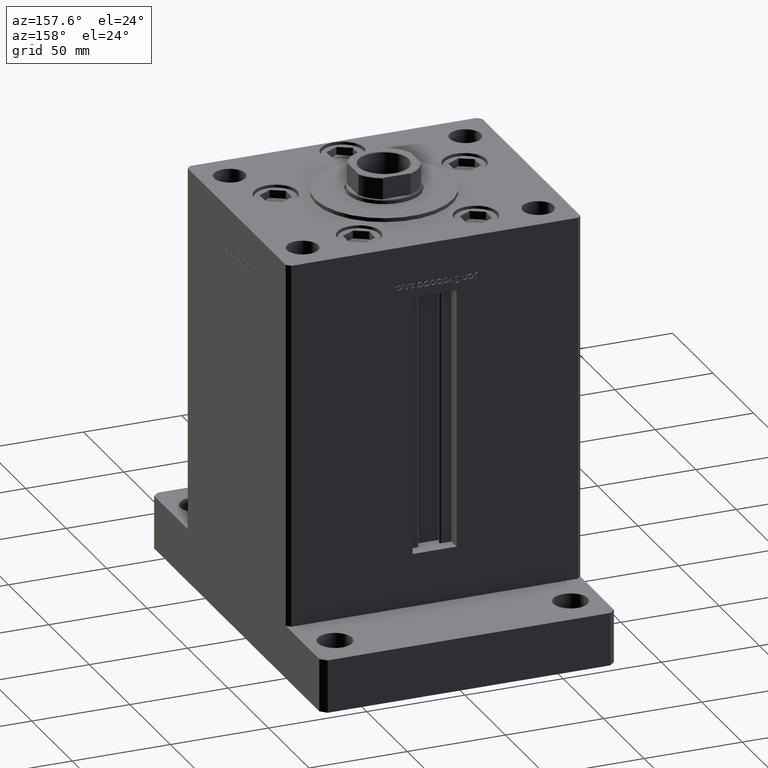
[diagram: clean part render]
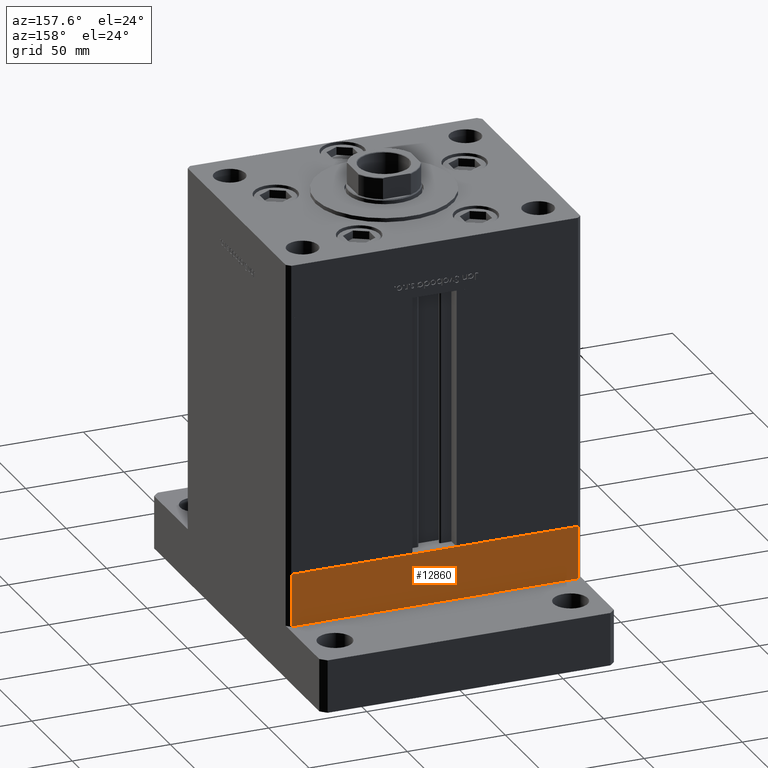
[diagram: same view with one face highlighted and labeled with its STEP entity id]
A machine part, auxiliary view. The second image highlights one B-rep face of the part: STEP entity #12860.
In plain terms, the highlighted planar face has unit normal (0, 1, 0).
Its self-contained STEP definition (entity closure, byte-faithful):
#214 = DIRECTION ( 'NONE',  ( -1.000000000000000000, -1.901066822988282689E-16, 0.000000000000000000 ) ) ;
#409 = LINE ( 'NONE', #16981, #26624 ) ;
#470 = EDGE_CURVE ( 'NONE', #33221, #23939, #11891, .T. ) ;
#8240 = AXIS2_PLACEMENT_3D ( 'NONE', #25586, #9795, #37531 ) ;
#9795 = DIRECTION ( 'NONE',  ( -1.901066822988282936E-16, 1.000000000000000000, 0.000000000000000000 ) ) ;
#11891 = LINE ( 'NONE', #49897, #29689 ) ;
#12473 = CARTESIAN_POINT ( 'NONE',  ( 72.99999999999992895, 62.50000000000001421, -27.00000000000000000 ) ) ;
#12860 = ADVANCED_FACE ( 'NONE', ( #25320 ), #13862, .T. ) ;
#13862 = PLANE ( 'NONE',  #8240 ) ;
#15377 = EDGE_CURVE ( 'NONE', #47877, #33221, #20908, .T. ) ;
#16824 = DIRECTION ( 'NONE',  ( 0.000000000000000000, 0.000000000000000000, 1.000000000000000000 ) ) ;
#16981 = CARTESIAN_POINT ( 'NONE',  ( -73.00000000000001421, 62.49999999999998579, -27.00000000000000000 ) ) ;
#19066 = ORIENTED_EDGE ( 'NONE', *, *, #53249, .T. ) ;
#20908 = LINE ( 'NONE', #29594, #41306 ) ;
#23939 = VERTEX_POINT ( 'NONE', #37129 ) ;
#25320 = FACE_OUTER_BOUND ( 'NONE', #43417, .T. ) ;
#25586 = CARTESIAN_POINT ( 'NONE',  ( 72.99999999999992895, 62.50000000000001421, -27.00000000000000000 ) ) ;
#26624 = VECTOR ( 'NONE', #32761, 1000.000000000000000 ) ;
#29594 = CARTESIAN_POINT ( 'NONE',  ( 72.99999999999992895, 62.50000000000001421, -27.00000000000000000 ) ) ;
#29689 = VECTOR ( 'NONE', #214, 1000.000000000000000 ) ;
#30420 = ORIENTED_EDGE ( 'NONE', *, *, #15377, .F. ) ;
#32761 = DIRECTION ( 'NONE',  ( 0.000000000000000000, 0.000000000000000000, 1.000000000000000000 ) ) ;
#33134 = LINE ( 'NONE', #12473, #42549 ) ;
#33221 = VERTEX_POINT ( 'NONE', #46650 ) ;
#35380 = CARTESIAN_POINT ( 'NONE',  ( 72.99999999999992895, 62.50000000000001421, -27.00000000000000000 ) ) ;
#37129 = CARTESIAN_POINT ( 'NONE',  ( -73.00000000000001421, 62.49999999999998579, 0.000000000000000000 ) ) ;
#37531 = DIRECTION ( 'NONE',  ( -1.000000000000000000, -1.901066822988282936E-16, 0.000000000000000000 ) ) ;
#41196 = EDGE_CURVE ( 'NONE', #47877, #46300, #33134, .T. ) ;
#41306 = VECTOR ( 'NONE', #16824, 1000.000000000000000 ) ;
#41852 = ORIENTED_EDGE ( 'NONE', *, *, #470, .F. ) ;
#42549 = VECTOR ( 'NONE', #43655, 1000.000000000000000 ) ;
#43417 = EDGE_LOOP ( 'NONE', ( #41852, #30420, #52338, #19066 ) ) ;
#43655 = DIRECTION ( 'NONE',  ( -1.000000000000000000, -1.901066822988282689E-16, 0.000000000000000000 ) ) ;
#46300 = VERTEX_POINT ( 'NONE', #51231 ) ;
#46650 = CARTESIAN_POINT ( 'NONE',  ( 72.99999999999992895, 62.50000000000001421, 0.000000000000000000 ) ) ;
#47877 = VERTEX_POINT ( 'NONE', #35380 ) ;
#49897 = CARTESIAN_POINT ( 'NONE',  ( 72.99999999999992895, 62.50000000000001421, 0.000000000000000000 ) ) ;
#51231 = CARTESIAN_POINT ( 'NONE',  ( -73.00000000000001421, 62.49999999999998579, -27.00000000000000000 ) ) ;
#52338 = ORIENTED_EDGE ( 'NONE', *, *, #41196, .T. ) ;
#53249 = EDGE_CURVE ( 'NONE', #46300, #23939, #409, .T. ) ;